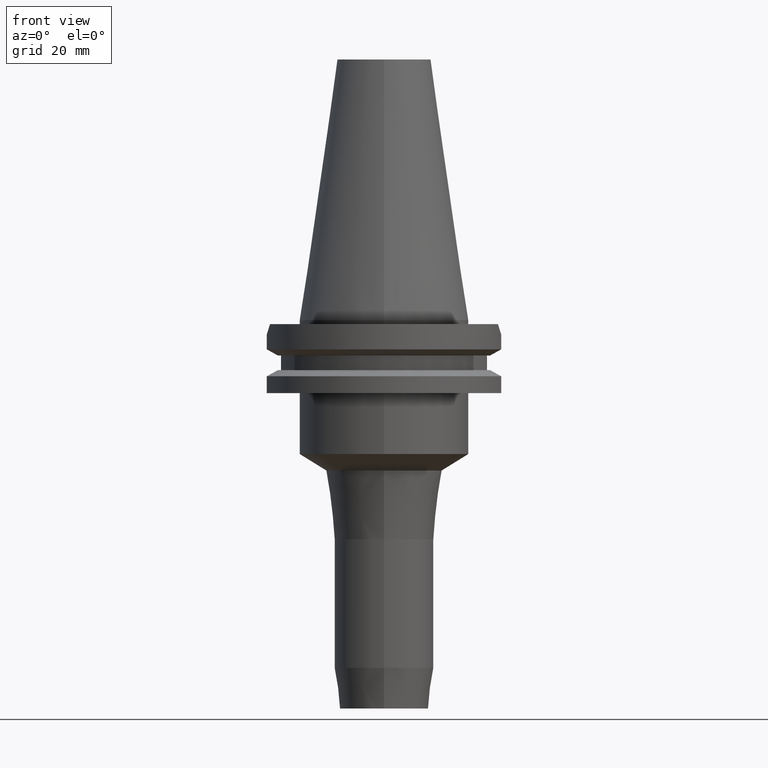
[diagram: clean part render]
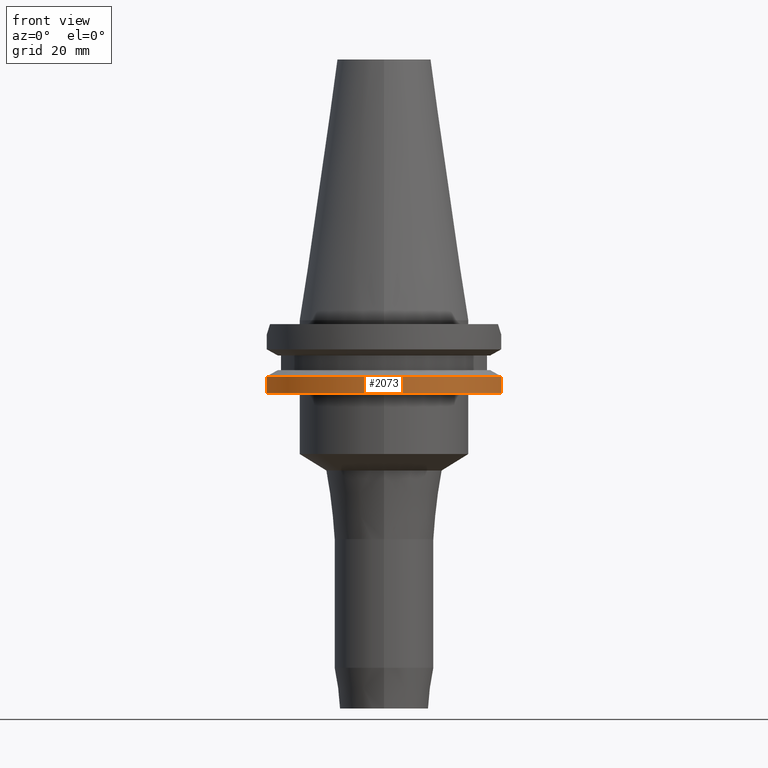
[diagram: same view with one face highlighted and labeled with its STEP entity id]
A machine part, front view. The second image highlights one B-rep face of the part: STEP entity #2073.
In plain terms, the highlighted cylindrical surface (partial cylindrical patch) has radius 31.75 mm, axis along (0, 0, -1).
Its self-contained STEP definition (entity closure, byte-faithful):
#557=CARTESIAN_POINT('',(0.E0,2.164471368983E-14,-1.905E1));
#558=DIRECTION('',(0.E0,0.E0,1.E0));
#559=DIRECTION('',(-9.661575315241E-1,-2.579527559055E-1,0.E0));
#560=AXIS2_PLACEMENT_3D('',#557,#558,#559);
#565=CARTESIAN_POINT('',(0.E0,2.164471368983E-14,-1.905E1));
#566=DIRECTION('',(0.E0,0.E0,1.E0));
#567=DIRECTION('',(0.E0,-1.E0,0.E0));
#568=AXIS2_PLACEMENT_3D('',#565,#566,#567);
#655=DIRECTION('',(3.682731677992E-8,1.379366260045E-7,-1.E0));
#656=VECTOR('',#655,4.396327811887E0);
#657=CARTESIAN_POINT('',(3.067550146399E1,-8.190000606415E0,-1.465367218811E1));
#658=LINE('',#657,#656);
#662=DIRECTION('',(-7.635537658565E-9,2.859820806319E-8,1.E0));
#663=VECTOR('',#662,4.396334354432E0);
#664=CARTESIAN_POINT('',(-3.067550162589E1,-8.19E0,-1.905E1));
#665=LINE('',#664,#663);
#1060=CARTESIAN_POINT('',(0.E0,1.055026073065E-14,-1.465366676908E1));
#1061=DIRECTION('',(0.E0,0.E0,-1.E0));
#1062=DIRECTION('',(9.661575315241E-1,-2.579527559055E-1,0.E0));
#1063=AXIS2_PLACEMENT_3D('',#1060,#1061,#1062);
#1068=CARTESIAN_POINT('',(0.E0,1.055026073065E-14,-1.465366676908E1));
#1069=DIRECTION('',(0.E0,0.E0,-1.E0));
#1070=DIRECTION('',(0.E0,-1.E0,0.E0));
#1071=AXIS2_PLACEMENT_3D('',#1068,#1069,#1070);
#1386=CARTESIAN_POINT('',(-3.067550162589E1,-8.19E0,-1.905E1));
#1387=VERTEX_POINT('',#1386);
#1388=CARTESIAN_POINT('',(1.540277123354E-14,-3.175E1,-1.905E1));
#1389=CARTESIAN_POINT('',(3.067550162589E1,-8.19E0,-1.905E1));
#1390=VERTEX_POINT('',#1388);
#1391=VERTEX_POINT('',#1389);
#1400=CARTESIAN_POINT('',(3.067550146399E1,-8.190000606415E0,
-1.465367218811E1));
#1401=VERTEX_POINT('',#1400);
#1412=CARTESIAN_POINT('',(-3.067550165946E1,-8.189999874273E0,
-1.465366564557E1));
#1413=VERTEX_POINT('',#1412);
#1414=CARTESIAN_POINT('',(0.E0,-3.175E1,-1.465366676908E1));
#1415=VERTEX_POINT('',#1414);
#2057=CARTESIAN_POINT('',(0.E0,2.164471368983E-14,7.67425E1));
#2058=DIRECTION('',(0.E0,0.E0,-1.E0));
#2059=DIRECTION('',(0.E0,-1.E0,0.E0));
#2060=AXIS2_PLACEMENT_3D('',#2057,#2058,#2059);
#2061=CYLINDRICAL_SURFACE('',#2060,3.175E1);
#2062=ORIENTED_EDGE('',*,*,#2037,.T.);
#2063=ORIENTED_EDGE('',*,*,#2001,.F.);
#2064=ORIENTED_EDGE('',*,*,#1999,.F.);
#2066=ORIENTED_EDGE('',*,*,#2065,.T.);
#2068=ORIENTED_EDGE('',*,*,#2067,.F.);
#2070=ORIENTED_EDGE('',*,*,#2069,.F.);
#2071=EDGE_LOOP('',(#2062,#2063,#2064,#2066,#2068,#2070));
#2072=FACE_OUTER_BOUND('',#2071,.F.);
#561=CIRCLE('',#560,3.175E1);
#569=CIRCLE('',#568,3.175E1);
#1064=CIRCLE('',#1063,3.175E1);
#1072=CIRCLE('',#1071,3.175E1);
#1999=EDGE_CURVE('',#1387,#1390,#561,.T.);
#2001=EDGE_CURVE('',#1390,#1391,#569,.T.);
#2037=EDGE_CURVE('',#1401,#1391,#658,.T.);
#2065=EDGE_CURVE('',#1387,#1413,#665,.T.);
#2067=EDGE_CURVE('',#1415,#1413,#1072,.T.);
#2069=EDGE_CURVE('',#1401,#1415,#1064,.T.);
#2073=ADVANCED_FACE('',(#2072),#2061,.T.);